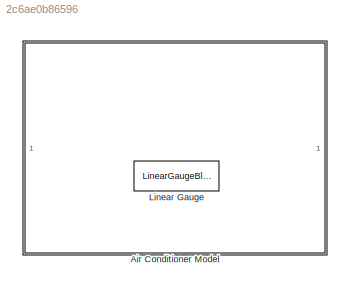
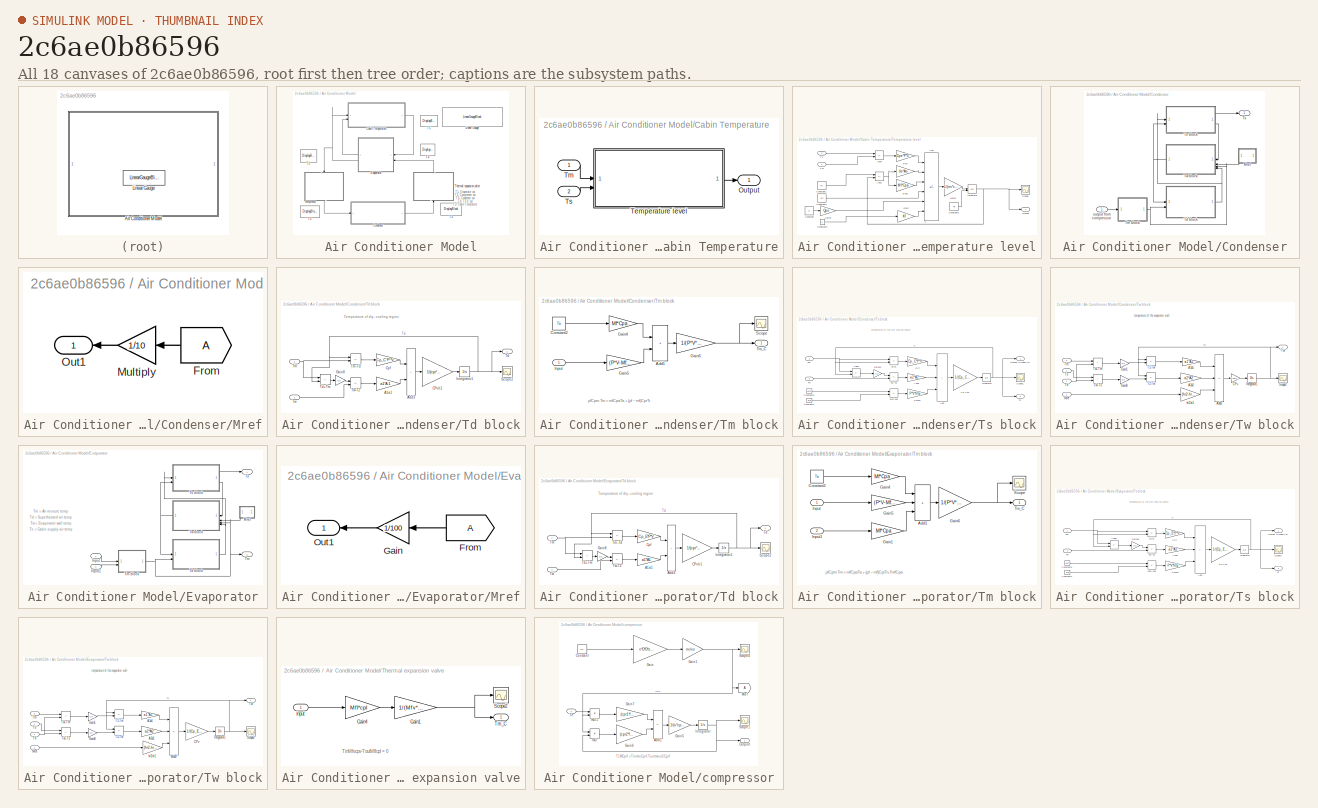
[diagram: thumbnail index - all 18 canvases of the model, root first then tree order]
MODEL slx_2c6ae0b86596
KIND model
CONFIG AbsTol = auto
CONFIG EnableMultiTasking = off
CONFIG FixedStep = auto
CONFIG MaxStep = auto
CONFIG MinStep = auto
CONFIG RelTol = 1e-3
CONFIG SampleTimeConstraint = Unconstrained
CONFIG SolverName = VariableStepAuto
CONFIG StartTime = 0.0
CONFIG StopTime = sim_time
BLOCK [SubSystem] Air Conditioner Model
BLOCK [SubSystem] Air Conditioner Model/Cabin Temperature
BLOCK [Outport] Air Conditioner Model/Cabin Temperature/Output
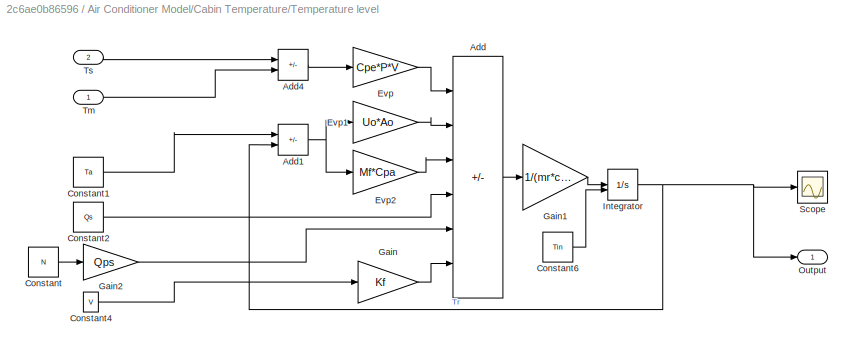
BLOCK [SubSystem] Air Conditioner Model/Cabin Temperature/Temperature level
BLOCK [Sum] Air Conditioner Model/Cabin Temperature/Temperature level/Add
  IconShape = rectangular
  Inputs = -+++++
BLOCK [Sum] Air Conditioner Model/Cabin Temperature/Temperature level/Add1
  IconShape = rectangular
  Inputs = +-
BLOCK [Sum] Air Conditioner Model/Cabin Temperature/Temperature level/Add4
  IconShape = rectangular
  Inputs = -+
BLOCK [Constant] Air Conditioner Model/Cabin Temperature/Temperature level/Constant
  Value = N
BLOCK [Constant] Air Conditioner Model/Cabin Temperature/Temperature level/Constant1
  Value = Ta
BLOCK [Constant] Air Conditioner Model/Cabin Temperature/Temperature level/Constant2
  Value = Qs
BLOCK [Constant] Air Conditioner Model/Cabin Temperature/Temperature level/Constant4
  Value = V
BLOCK [Constant] Air Conditioner Model/Cabin Temperature/Temperature level/Constant6
  Value = Tin
BLOCK [Gain] Air Conditioner Model/Cabin Temperature/Temperature level/Evp
  Gain = Cpe*P*V
BLOCK [Gain] Air Conditioner Model/Cabin Temperature/Temperature level/Evp1
  Gain = Uo*Ao
BLOCK [Gain] Air Conditioner Model/Cabin Temperature/Temperature level/Evp2
  Gain = Mf*Cpa
BLOCK [Gain] Air Conditioner Model/Cabin Temperature/Temperature level/Gain
  Gain = Kf
BLOCK [Gain] Air Conditioner Model/Cabin Temperature/Temperature level/Gain1
  Gain = 1/(mr*cpr)
BLOCK [Gain] Air Conditioner Model/Cabin Temperature/Temperature level/Gain2
  Gain = Qps
BLOCK [Integrator] Air Conditioner Model/Cabin Temperature/Temperature level/Integrator
  InitialConditionSource = external
BLOCK [Outport] Air Conditioner Model/Cabin Temperature/Temperature level/Output
BLOCK [Scope] Air Conditioner Model/Cabin Temperature/Temperature level/Scope
  Floating = off
  NumInputPorts = 1
  ScopeSpecificationString = Simulink.scopes.TimeScopeBlockCfg('CurrentConfiguration', extmgr.ConfigurationSet(extmgr.Configuration('Core','General UI',true),extmgr.Configuration('Core','Source UI',true),extmgr.Configuration('Sources','WiredSimulink',true,'DataLoggingVariableName','T','DataLogging',true,'DataLoggingSaveFormat','Array'),extmgr.Configuration('Visuals','Time Domain',true,'SerializedDisplays',{struct('MinYLimReal...<+1436ch>
BLOCK [Inport] Air Conditioner Model/Cabin Temperature/Temperature level/Tm
BLOCK [Inport] Air Conditioner Model/Cabin Temperature/Temperature level/Ts
  Port = 2
BLOCK [Inport] Air Conditioner Model/Cabin Temperature/Tm
BLOCK [Inport] Air Conditioner Model/Cabin Temperature/Ts
  Port = 2
BLOCK [SubSystem] Air Conditioner Model/Condenser
BLOCK [SubSystem] Air Conditioner Model/Condenser/Mref
  NameLocation = top
BLOCK [From] Air Conditioner Model/Condenser/Mref/From
  NameLocation = top
  TagVisibility = global
BLOCK [Gain] Air Conditioner Model/Condenser/Mref/Multiply
  Gain = 1/10
BLOCK [Outport] Air Conditioner Model/Condenser/Mref/Out1
BLOCK [SubSystem] Air Conditioner Model/Condenser/Td block
BLOCK [Gain] Air Conditioner Model/Condenser/Td block/A1a1
  Gain = a1*A1
BLOCK [Sum] Air Conditioner Model/Condenser/Td block/Add3
  IconShape = rectangular
BLOCK [Gain] Air Conditioner Model/Condenser/Td block/CPvh1
  Gain = 1/(cpr*P*Vh1)
BLOCK [Gain] Air Conditioner Model/Condenser/Td block/Cpf
  Gain = Cp_C*P*V
BLOCK [Gain] Air Conditioner Model/Condenser/Td block/Gain8
  Gain = 1/2
BLOCK [Integrator] Air Conditioner Model/Condenser/Td block/Integrator1
BLOCK [Scope] Air Conditioner Model/Condenser/Td block/Scope2
  Floating = off
  NumInputPorts = 1
  ScopeSpecificationString = Simulink.scopes.TimeScopeBlockCfg('CurrentConfiguration', extmgr.ConfigurationSet(extmgr.Configuration('Core','General UI',true),extmgr.Configuration('Core','Source UI',true),extmgr.Configuration('Sources','WiredSimulink',true,'DataLoggingVariableName','ScopeData2'),extmgr.Configuration('Visuals','Time Domain',true,'SerializedDisplays',{struct('MinYLimReal','-5.22527','MaxYLimReal','47.02744','YLa...<+1365ch>
BLOCK [Outport] Air Conditioner Model/Condenser/Td block/Td
BLOCK [Sum] Air Conditioner Model/Condenser/Td block/Td+Tm
  IconShape = rectangular
BLOCK [Inport] Air Conditioner Model/Condenser/Td block/Tm
  Port = 2
BLOCK [Sum] Air Conditioner Model/Condenser/Td block/Tm-Td
  IconShape = rectangular
  Inputs = -+
BLOCK [Inport] Air Conditioner Model/Condenser/Td block/Tw
BLOCK [Sum] Air Conditioner Model/Condenser/Td block/Tw-T2
  IconShape = rectangular
  Inputs = -+
BLOCK [SubSystem] Air Conditioner Model/Condenser/Tm block
BLOCK [Sum] Air Conditioner Model/Condenser/Tm block/Add1
  IconShape = rectangular
BLOCK [Constant] Air Conditioner Model/Condenser/Tm block/Constant2
  Value = Ta
BLOCK [Gain] Air Conditioner Model/Condenser/Tm block/Gain4
  Gain = Mf*Cpa
BLOCK [Gain] Air Conditioner Model/Condenser/Tm block/Gain5
  Gain = (P*V-Mf)*cpr
BLOCK [Gain] Air Conditioner Model/Condenser/Tm block/Gain6
  Gain = 1/(P*V*Cp_C)
BLOCK [Inport] Air Conditioner Model/Condenser/Tm block/Input
BLOCK [Scope] Air Conditioner Model/Condenser/Tm block/Scope
  Floating = off
  NumInputPorts = 1
  ScopeSpecificationString = Simulink.scopes.TimeScopeBlockCfg('CurrentConfiguration', extmgr.ConfigurationSet(extmgr.Configuration('Core','General UI',true),extmgr.Configuration('Core','Source UI',true),extmgr.Configuration('Sources','WiredSimulink',true,'DataLoggingVariableName','ScopeData1'),extmgr.Configuration('Visuals','Time Domain',true,'SerializedDisplays',{struct('MinYLimReal','22.75143','MaxYLimReal','58.37195','YLa...<+1370ch>
BLOCK [Outport] Air Conditioner Model/Condenser/Tm block/Tm_C
BLOCK [Outport] Air Conditioner Model/Condenser/Ts
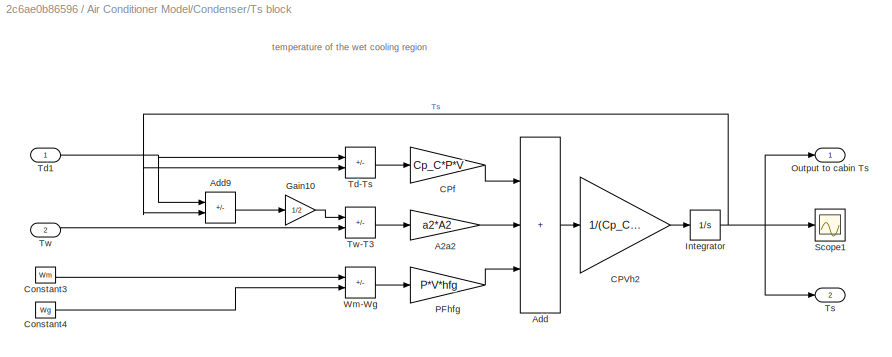
BLOCK [SubSystem] Air Conditioner Model/Condenser/Ts block
BLOCK [Gain] Air Conditioner Model/Condenser/Ts block/A2a2
  Gain = a2*A2
BLOCK [Sum] Air Conditioner Model/Condenser/Ts block/Add
  IconShape = rectangular
  Inputs = +++
BLOCK [Sum] Air Conditioner Model/Condenser/Ts block/Add9
  IconShape = rectangular
  Inputs = +-
BLOCK [Gain] Air Conditioner Model/Condenser/Ts block/CPVh2
  Gain = 1/(Cp_C*P*Vh2)
BLOCK [Gain] Air Conditioner Model/Condenser/Ts block/CPf
  Gain = Cp_C*P*V
BLOCK [Constant] Air Conditioner Model/Condenser/Ts block/Constant3
  Value = Wm
BLOCK [Constant] Air Conditioner Model/Condenser/Ts block/Constant4
  Value = Wg
BLOCK [Gain] Air Conditioner Model/Condenser/Ts block/Gain10
  Gain = 1/2
BLOCK [Integrator] Air Conditioner Model/Condenser/Ts block/Integrator
  InitialCondition = 27
BLOCK [Outport] Air Conditioner Model/Condenser/Ts block/Output to cabin Ts
BLOCK [Gain] Air Conditioner Model/Condenser/Ts block/PFhfg
  Gain = P*V*hfg
BLOCK [Scope] Air Conditioner Model/Condenser/Ts block/Scope1
  Floating = off
  NumInputPorts = 1
  ScopeSpecificationString = Simulink.scopes.TimeScopeBlockCfg('CurrentConfiguration', extmgr.ConfigurationSet(extmgr.Configuration('Core','General UI',true),extmgr.Configuration('Core','Source UI',true),extmgr.Configuration('Sources','WiredSimulink',true,'DataLoggingVariableName','Con','DataLogging',true,'DataLoggingSaveFormat','Array'),extmgr.Configuration('Visuals','Time Domain',true,'SerializedDisplays',{struct('MinYLimRe...<+1440ch>
BLOCK [Sum] Air Conditioner Model/Condenser/Ts block/Td-Ts
  IconShape = rectangular
  Inputs = +-
BLOCK [Inport] Air Conditioner Model/Condenser/Ts block/Td1
BLOCK [Outport] Air Conditioner Model/Condenser/Ts block/Ts
  Port = 2
BLOCK [Inport] Air Conditioner Model/Condenser/Ts block/Tw
  Port = 2
BLOCK [Sum] Air Conditioner Model/Condenser/Ts block/Tw-T3
  IconShape = rectangular
  Inputs = -+
BLOCK [Sum] Air Conditioner Model/Condenser/Ts block/Wm-Wg
  IconShape = rectangular
  Inputs = +-
BLOCK [SubSystem] Air Conditioner Model/Condenser/Tw block
BLOCK [Gain] Air Conditioner Model/Condenser/Tw block/A1a1
  Gain = a1*A1
BLOCK [Gain] Air Conditioner Model/Condenser/Tw block/A2a2
  Gain = a2*A2
BLOCK [Sum] Air Conditioner Model/Condenser/Tw block/Add3
  IconShape = rectangular
  Inputs = ++-
BLOCK [Gain] Air Conditioner Model/Condenser/Tw block/CPv
  Gain = 1/(cpr*P*v)
BLOCK [Gain] Air Conditioner Model/Condenser/Tw block/Gain1
  Gain = 1/2
BLOCK [Gain] Air Conditioner Model/Condenser/Tw block/Gain8
  Gain = 1/2
BLOCK [Integrator] Air Conditioner Model/Condenser/Tw block/Integrator1
  InitialCondition = 28
BLOCK [Inport] Air Conditioner Model/Condenser/Tw block/Mref
  Port = 2
BLOCK [Scope] Air Conditioner Model/Condenser/Tw block/Scope2
  Floating = off
  NumInputPorts = 1
  ScopeSpecificationString = Simulink.scopes.TimeScopeBlockCfg('CurrentConfiguration', extmgr.ConfigurationSet(extmgr.Configuration('Core','General UI',true),extmgr.Configuration('Core','Source UI',true),extmgr.Configuration('Sources','WiredSimulink',true,'DataLoggingVariableName','ScopeData2'),extmgr.Configuration('Visuals','Time Domain',true,'SerializedDisplays',{struct('MinYLimReal','23.56767','MaxYLimReal','58.62035','YLa...<+1397ch>
BLOCK [Sum] Air Conditioner Model/Condenser/Tw block/T1-Tw
  IconShape = rectangular
  Inputs = -+
BLOCK [Sum] Air Conditioner Model/Condenser/Tw block/T2-Tw
  IconShape = rectangular
  Inputs = -+
BLOCK [Inport] Air Conditioner Model/Condenser/Tw block/Td
  Port = 4
BLOCK [Sum] Air Conditioner Model/Condenser/Tw block/Td+Tm
  IconShape = rectangular
BLOCK [Sum] Air Conditioner Model/Condenser/Tw block/Td+Ts
  IconShape = rectangular
BLOCK [Inport] Air Conditioner Model/Condenser/Tw block/Tm
  Port = 3
BLOCK [Inport] Air Conditioner Model/Condenser/Tw block/Ts
BLOCK [Outport] Air Conditioner Model/Condenser/Tw block/Tw
BLOCK [Gain] Air Conditioner Model/Condenser/Tw block/hr2-hr1
  Gain = (hr2-hr1)
BLOCK [Inport] Air Conditioner Model/Condenser/output from compressor
BLOCK [SubSystem] Air Conditioner Model/Evaporator
BLOCK [Inport] Air Conditioner Model/Evaporator/Input
BLOCK [Inport] Air Conditioner Model/Evaporator/Input1
  Port = 2
BLOCK [SubSystem] Air Conditioner Model/Evaporator/Mref
  NameLocation = top
BLOCK [From] Air Conditioner Model/Evaporator/Mref/From
  NameLocation = top
  TagVisibility = global
BLOCK [Gain] Air Conditioner Model/Evaporator/Mref/Gain
  Gain = 1/100
  NameLocation = top
BLOCK [Outport] Air Conditioner Model/Evaporator/Mref/Out1
BLOCK [SubSystem] Air Conditioner Model/Evaporator/Td block
BLOCK [Gain] Air Conditioner Model/Evaporator/Td block/A1a1
  Gain = a1*A1
BLOCK [Sum] Air Conditioner Model/Evaporator/Td block/Add3
  IconShape = rectangular
BLOCK [Gain] Air Conditioner Model/Evaporator/Td block/CPvh1
  Gain = 1/(cpr*P*Vh1)
BLOCK [Gain] Air Conditioner Model/Evaporator/Td block/Cpf
  Gain = Cp_E*P*V
BLOCK [Gain] Air Conditioner Model/Evaporator/Td block/Gain8
  Gain = 1/2
BLOCK [Integrator] Air Conditioner Model/Evaporator/Td block/Integrator1
  InitialCondition = 27
BLOCK [Scope] Air Conditioner Model/Evaporator/Td block/Scope2
  Floating = off
  NumInputPorts = 1
  ScopeSpecificationString = Simulink.scopes.TimeScopeBlockCfg('CurrentConfiguration', extmgr.ConfigurationSet(extmgr.Configuration('Core','General UI',true),extmgr.Configuration('Core','Source UI',true),extmgr.Configuration('Sources','WiredSimulink',true,'DataLoggingVariableName','ScopeData2'),extmgr.Configuration('Visuals','Time Domain',true,'SerializedDisplays',{struct('MinYLimReal','13.71145','MaxYLimReal','29.29011','YLa...<+1367ch>
BLOCK [Outport] Air Conditioner Model/Evaporator/Td block/Td
BLOCK [Sum] Air Conditioner Model/Evaporator/Td block/Td+Tm
  IconShape = rectangular
BLOCK [Inport] Air Conditioner Model/Evaporator/Td block/Tm
  Port = 2
BLOCK [Sum] Air Conditioner Model/Evaporator/Td block/Tm-Td
  IconShape = rectangular
  Inputs = -+
BLOCK [Inport] Air Conditioner Model/Evaporator/Td block/Tw
BLOCK [Sum] Air Conditioner Model/Evaporator/Td block/Tw-T2
  IconShape = rectangular
  Inputs = -+
BLOCK [Outport] Air Conditioner Model/Evaporator/Tm
  Port = 2
BLOCK [SubSystem] Air Conditioner Model/Evaporator/Tm block
BLOCK [Sum] Air Conditioner Model/Evaporator/Tm block/Add1
  IconShape = rectangular
  Inputs = +++
BLOCK [Constant] Air Conditioner Model/Evaporator/Tm block/Constant2
  Value = Ta
BLOCK [Gain] Air Conditioner Model/Evaporator/Tm block/Gain1
  Gain = Mf*Cpa
BLOCK [Gain] Air Conditioner Model/Evaporator/Tm block/Gain4
  Gain = Mf*Cpa
BLOCK [Gain] Air Conditioner Model/Evaporator/Tm block/Gain5
  Gain = (P*V-Mf)*cpr
BLOCK [Gain] Air Conditioner Model/Evaporator/Tm block/Gain6
  Gain = 1/(P*V*Cp_E)
BLOCK [Inport] Air Conditioner Model/Evaporator/Tm block/Input
BLOCK [Inport] Air Conditioner Model/Evaporator/Tm block/Input1
  Port = 2
BLOCK [Scope] Air Conditioner Model/Evaporator/Tm block/Scope
  Floating = off
  NumInputPorts = 1
  ScopeSpecificationString = Simulink.scopes.TimeScopeBlockCfg('CurrentConfiguration', extmgr.ConfigurationSet(extmgr.Configuration('Core','General UI',true),extmgr.Configuration('Core','Source UI',true),extmgr.Configuration('Sources','WiredSimulink',true,'DataLoggingVariableName','ScopeData1'),extmgr.Configuration('Visuals','Time Domain',true,'SerializedDisplays',{struct('MinYLimReal','19.71422','MaxYLimReal','25.13528','YLa...<+1370ch>
BLOCK [Outport] Air Conditioner Model/Evaporator/Tm block/Tm_C
BLOCK [Outport] Air Conditioner Model/Evaporator/Ts
BLOCK [SubSystem] Air Conditioner Model/Evaporator/Ts block
BLOCK [Gain] Air Conditioner Model/Evaporator/Ts block/A2a2
  Gain = a2*A2
BLOCK [Sum] Air Conditioner Model/Evaporator/Ts block/Add
  IconShape = rectangular
  Inputs = +++
BLOCK [Sum] Air Conditioner Model/Evaporator/Ts block/Add9
  IconShape = rectangular
  Inputs = +-
BLOCK [Gain] Air Conditioner Model/Evaporator/Ts block/CPVh2
  Gain = 1/(Cp_E*P*Vh2)
BLOCK [Gain] Air Conditioner Model/Evaporator/Ts block/CPf
  Gain = Cp_E*P*V
BLOCK [Constant] Air Conditioner Model/Evaporator/Ts block/Constant3
  Value = Wm
BLOCK [Constant] Air Conditioner Model/Evaporator/Ts block/Constant4
  Value = Wg
BLOCK [Gain] Air Conditioner Model/Evaporator/Ts block/Gain10
  Gain = 1/2
BLOCK [Integrator] Air Conditioner Model/Evaporator/Ts block/Integrator
  InitialCondition = 27
BLOCK [Outport] Air Conditioner Model/Evaporator/Ts block/Output to cabin Ts
BLOCK [Gain] Air Conditioner Model/Evaporator/Ts block/PFhfg
  Gain = P*V*hfg
BLOCK [Scope] Air Conditioner Model/Evaporator/Ts block/Scope1
  Floating = off
  NumInputPorts = 1
  ScopeSpecificationString = Simulink.scopes.TimeScopeBlockCfg('CurrentConfiguration', extmgr.ConfigurationSet(extmgr.Configuration('Core','General UI',true),extmgr.Configuration('Core','Source UI',true),extmgr.Configuration('Sources','WiredSimulink',true,'DataLoggingVariableName','Evp','DataLogging',true,'DataLoggingSaveFormat','Array'),extmgr.Configuration('Visuals','Time Domain',true,'SerializedDisplays',{struct('MinYLimRe...<+1438ch>
BLOCK [Sum] Air Conditioner Model/Evaporator/Ts block/Td-Ts
  IconShape = rectangular
  Inputs = +-
BLOCK [Inport] Air Conditioner Model/Evaporator/Ts block/Td1
BLOCK [Outport] Air Conditioner Model/Evaporator/Ts block/Ts
  Port = 2
BLOCK [Inport] Air Conditioner Model/Evaporator/Ts block/Tw
  Port = 2
BLOCK [Sum] Air Conditioner Model/Evaporator/Ts block/Tw-T3
  IconShape = rectangular
  Inputs = -+
BLOCK [Sum] Air Conditioner Model/Evaporator/Ts block/Wm-Wg
  IconShape = rectangular
  Inputs = +-
BLOCK [SubSystem] Air Conditioner Model/Evaporator/Tw block
BLOCK [Gain] Air Conditioner Model/Evaporator/Tw block/A1a1
  Gain = a1*A1
BLOCK [Gain] Air Conditioner Model/Evaporator/Tw block/A2a2
  Gain = a2*A2
BLOCK [Sum] Air Conditioner Model/Evaporator/Tw block/Add3
  IconShape = rectangular
  Inputs = ++-
BLOCK [Gain] Air Conditioner Model/Evaporator/Tw block/CPv
  Gain = 1/(Cp_E*P*v)
BLOCK [Gain] Air Conditioner Model/Evaporator/Tw block/Gain1
  Gain = 1/2
BLOCK [Gain] Air Conditioner Model/Evaporator/Tw block/Gain8
  Gain = 1/2
BLOCK [Integrator] Air Conditioner Model/Evaporator/Tw block/Integrator1
  InitialCondition = 28
BLOCK [Inport] Air Conditioner Model/Evaporator/Tw block/Mref
  Port = 2
BLOCK [Scope] Air Conditioner Model/Evaporator/Tw block/Scope2
  Floating = off
  NumInputPorts = 1
  ScopeSpecificationString = Simulink.scopes.TimeScopeBlockCfg('CurrentConfiguration', extmgr.ConfigurationSet(extmgr.Configuration('Core','General UI',true),extmgr.Configuration('Core','Source UI',true),extmgr.Configuration('Sources','WiredSimulink',true,'DataLoggingVariableName','ScopeData2'),extmgr.Configuration('Visuals','Time Domain',true,'SerializedDisplays',{struct('MinYLimReal','14.48413','MaxYLimReal','29.50176','YLa...<+1367ch>
BLOCK [Sum] Air Conditioner Model/Evaporator/Tw block/T1-Tw
  IconShape = rectangular
  Inputs = -+
BLOCK [Sum] Air Conditioner Model/Evaporator/Tw block/T2-Tw
  IconShape = rectangular
  Inputs = -+
BLOCK [Inport] Air Conditioner Model/Evaporator/Tw block/Td
  Port = 4
BLOCK [Sum] Air Conditioner Model/Evaporator/Tw block/Td+Tm
  IconShape = rectangular
BLOCK [Sum] Air Conditioner Model/Evaporator/Tw block/Td+Ts
  IconShape = rectangular
BLOCK [Inport] Air Conditioner Model/Evaporator/Tw block/Tm
  Port = 3
BLOCK [Inport] Air Conditioner Model/Evaporator/Tw block/Ts
BLOCK [Outport] Air Conditioner Model/Evaporator/Tw block/Tw
BLOCK [Gain] Air Conditioner Model/Evaporator/Tw block/hr2-hr1
  Gain = (hr2-hr1)
BLOCK [LinearGaugeBlock] Air Conditioner Model/Linear Gauge
  ScaleMax = 50
  TickInterval = 5
BLOCK [DisplayBlock] Air Conditioner Model/T1
  LabelPosition = Hide
  Transparency = 1
BLOCK [DisplayBlock] Air Conditioner Model/T2
  LabelPosition = Hide
  Transparency = 1
BLOCK [DisplayBlock] Air Conditioner Model/T3
  LabelPosition = Hide
  Transparency = 1
BLOCK [DisplayBlock] Air Conditioner Model/T4
  LabelPosition = Hide
  Transparency = 1
BLOCK [DisplayBlock] Air Conditioner Model/T5
  LabelPosition = Hide
  Transparency = 1
BLOCK [SubSystem] Air Conditioner Model/Thermal expansion valve
  NameLocation = right
BLOCK [Gain] Air Conditioner Model/Thermal expansion valve/Gain1
  Gain = 1/(Mfv*cpv)
BLOCK [Gain] Air Conditioner Model/Thermal expansion valve/Gain4
  Gain = Mfl*cpl
BLOCK [Inport] Air Conditioner Model/Thermal expansion valve/Input
BLOCK [Scope] Air Conditioner Model/Thermal expansion valve/Scope2
  Floating = off
  NumInputPorts = 1
  ScopeSpecificationString = Simulink.scopes.TimeScopeBlockCfg('CurrentConfiguration', extmgr.ConfigurationSet(extmgr.Configuration('Core','General UI',true),extmgr.Configuration('Core','Source UI',true),extmgr.Configuration('Sources','WiredSimulink',true,'DataLoggingVariableName','Tev','DataLogging',true,'DataLoggingSaveFormat','Array'),extmgr.Configuration('Visuals','Time Domain',true,'SerializedDisplays',{struct('MinYLimRe...<+1552ch>
BLOCK [Outport] Air Conditioner Model/Thermal expansion valve/Tm_C
BLOCK [SubSystem] Air Conditioner Model/compressor
  NameLocation = left
BLOCK [Sum] Air Conditioner Model/compressor/Add1
  IconShape = rectangular
  Inputs = +-
BLOCK [Constant] Air Conditioner Model/compressor/Constant
  SampleTime = -1
  Value = Nc
  VectorParams1D = off
BLOCK [Gain] Air Conditioner Model/compressor/Gain
  Gain = n*D*D*sp1*(pi/4)
BLOCK [Gain] Air Conditioner Model/compressor/Gain1
  Gain = nv/vs
BLOCK [Gain] Air Conditioner Model/compressor/Gain5
  Gain = 1/(v*cpr*V)
BLOCK [Gain] Air Conditioner Model/compressor/Gain6
  Gain = (cpr2*f2)/1000
BLOCK [Gain] Air Conditioner Model/compressor/Gain7
  Gain = (cpr1*f1)/1000
BLOCK [Integrator] Air Conditioner Model/compressor/Integrator
  InitialCondition = 10
BLOCK [Goto] Air Conditioner Model/compressor/Mref
  TagVisibility = global
BLOCK [Outport] Air Conditioner Model/compressor/Outport
BLOCK [Scope] Air Conditioner Model/compressor/Scope1
  Floating = off
  NumInputPorts = 1
  ScopeSpecificationString = Simulink.scopes.TimeScopeBlockCfg('CurrentConfiguration', extmgr.ConfigurationSet(extmgr.Configuration('Core','General UI',true),extmgr.Configuration('Core','Source UI',true),extmgr.Configuration('Sources','WiredSimulink',true,'DataLoggingVariableName','Comp','DataLogging',true,'DataLoggingSaveFormat','Array'),extmgr.Configuration('Visuals','Time Domain',true,'SerializedDisplays',{struct('MinYLimR...<+1445ch>
BLOCK [Scope] Air Conditioner Model/compressor/Scope4
  Floating = off
  NumInputPorts = 1
  ScopeSpecificationString = Simulink.scopes.TimeScopeBlockCfg('CurrentConfiguration', extmgr.ConfigurationSet(extmgr.Configuration('Core','General UI',true),extmgr.Configuration('Core','Source UI',true),extmgr.Configuration('Sources','WiredSimulink',true,'DataLoggingVariableName','Mref','DataLogging',true),extmgr.Configuration('Visuals','Time Domain',true,'SerializedDisplays',{struct('MinYLimReal','37.05127','MaxYLimReal','2...<+1417ch>
BLOCK [Inport] Air Conditioner Model/compressor/Te
BLOCK [Product] Air Conditioner Model/compressor/mul
  Inputs = **
BLOCK [Product] Air Conditioner Model/compressor/mul1
  Inputs = **
BLOCK [LinearGaugeBlock] Linear Gauge
  ScaleMax = 50
  TickInterval = 5
ANNOTATION Air Conditioner Model: T1- Evaporator out T2- Compressor out T3- Condenser out T4- TEV out T5- Cabin Temprature
ANNOTATION Air Conditioner Model/Condenser/Td block: Temperature of dry- cooling region
ANNOTATION Air Conditioner Model/Condenser/Tm block: ρfCpm Tm = mfCpaTa + (ρf − mf)CprTr
ANNOTATION Air Conditioner Model/Condenser/Ts block: temperature of the wet cooling region
ANNOTATION Air Conditioner Model/Condenser/Tw block: temperature of the evaporator wall
ANNOTATION Air Conditioner Model/Evaporator: Td = Superheated air temp
ANNOTATION Air Conditioner Model/Evaporator: Tm = Air mixture temp
ANNOTATION Air Conditioner Model/Evaporator: Ts = Cabin supply air temp
ANNOTATION Air Conditioner Model/Evaporator: Tw = Evaporator wall temp
ANNOTATION Air Conditioner Model/Evaporator/Td block: Temperature of dry- cooling region
ANNOTATION Air Conditioner Model/Evaporator/Tm block: ρfCpm Tm = mfCpaTa + (ρf − mf)CprTr+TmfCpa
ANNOTATION Air Conditioner Model/Evaporator/Ts block: temperature of the wet cooling region
ANNOTATION Air Conditioner Model/Evaporator/Tw block: temperature of the evaporator wall
ANNOTATION Air Conditioner Model/Thermal expansion valve: TinMfvcpv-ToutMflcpl = 0
ANNOTATION Air Conditioner Model/compressor: T1MCprf =TinminCprf-Toutmout2Cprf
NET Air Conditioner Model/Cabin Temperature/Temperature level/Add1:1 -> Air Conditioner Model/Cabin Temperature/Temperature level/Evp1:1, Air Conditioner Model/Cabin Temperature/Temperature level/Evp2:1
LINE Air Conditioner Model/Cabin Temperature/Temperature level/Add4:1 -> Air Conditioner Model/Cabin Temperature/Temperature level/Evp:1
LINE Air Conditioner Model/Cabin Temperature/Temperature level/Add:1 -> Air Conditioner Model/Cabin Temperature/Temperature level/Gain1:1
LINE Air Conditioner Model/Cabin Temperature/Temperature level/Constant1:1 -> Air Conditioner Model/Cabin Temperature/Temperature level/Add1:1
LINE Air Conditioner Model/Cabin Temperature/Temperature level/Constant2:1 -> Air Conditioner Model/Cabin Temperature/Temperature level/Add:4
LINE Air Conditioner Model/Cabin Temperature/Temperature level/Constant4:1 -> Air Conditioner Model/Cabin Temperature/Temperature level/Gain:1
LINE Air Conditioner Model/Cabin Temperature/Temperature level/Constant6:1 -> Air Conditioner Model/Cabin Temperature/Temperature level/Integrator:2
LINE Air Conditioner Model/Cabin Temperature/Temperature level/Constant:1 -> Air Conditioner Model/Cabin Temperature/Temperature level/Gain2:1
LINE Air Conditioner Model/Cabin Temperature/Temperature level/Evp1:1 -> Air Conditioner Model/Cabin Temperature/Temperature level/Add:2
LINE Air Conditioner Model/Cabin Temperature/Temperature level/Evp2:1 -> Air Conditioner Model/Cabin Temperature/Temperature level/Add:3
LINE Air Conditioner Model/Cabin Temperature/Temperature level/Evp:1 -> Air Conditioner Model/Cabin Temperature/Temperature level/Add:1
LINE Air Conditioner Model/Cabin Temperature/Temperature level/Gain1:1 -> Air Conditioner Model/Cabin Temperature/Temperature level/Integrator:1
LINE Air Conditioner Model/Cabin Temperature/Temperature level/Gain2:1 -> Air Conditioner Model/Cabin Temperature/Temperature level/Add:5
LINE Air Conditioner Model/Cabin Temperature/Temperature level/Gain:1 -> Air Conditioner Model/Cabin Temperature/Temperature level/Add:6
NET Air Conditioner Model/Cabin Temperature/Temperature level/Integrator:1 -> Air Conditioner Model/Cabin Temperature/Temperature level/Add1:2, Air Conditioner Model/Cabin Temperature/Temperature level/Output:1, Air Conditioner Model/Cabin Temperature/Temperature level/Scope:1
LINE Air Conditioner Model/Cabin Temperature/Temperature level/Tm:1 -> Air Conditioner Model/Cabin Temperature/Temperature level/Add4:2
LINE Air Conditioner Model/Cabin Temperature/Temperature level/Ts:1 -> Air Conditioner Model/Cabin Temperature/Temperature level/Add4:1
LINE Air Conditioner Model/Cabin Temperature/Temperature level:1 -> Air Conditioner Model/Cabin Temperature/Output:1
LINE Air Conditioner Model/Cabin Temperature/Tm:1 -> Air Conditioner Model/Cabin Temperature/Temperature level:1
LINE Air Conditioner Model/Cabin Temperature/Ts:1 -> Air Conditioner Model/Cabin Temperature/Temperature level:2
LINE Air Conditioner Model/Cabin Temperature:1 -> Air Conditioner Model/Evaporator:1
LINE Air Conditioner Model/Condenser/Mref/From:1 -> Air Conditioner Model/Condenser/Mref/Multiply:1
LINE Air Conditioner Model/Condenser/Mref/Multiply:1 -> Air Conditioner Model/Condenser/Mref/Out1:1
LINE Air Conditioner Model/Condenser/Mref:1 -> Air Conditioner Model/Condenser/Tw block:2
LINE Air Conditioner Model/Condenser/Td block/A1a1:1 -> Air Conditioner Model/Condenser/Td block/Add3:2
LINE Air Conditioner Model/Condenser/Td block/Add3:1 -> Air Conditioner Model/Condenser/Td block/CPvh1:1
LINE Air Conditioner Model/Condenser/Td block/CPvh1:1 -> Air Conditioner Model/Condenser/Td block/Integrator1:1
LINE Air Conditioner Model/Condenser/Td block/Cpf:1 -> Air Conditioner Model/Condenser/Td block/Add3:1
LINE Air Conditioner Model/Condenser/Td block/Gain8:1 -> Air Conditioner Model/Condenser/Td block/Tw-T2:1
NET Air Conditioner Model/Condenser/Td block/Integrator1:1 -> Air Conditioner Model/Condenser/Td block/Scope2:1, Air Conditioner Model/Condenser/Td block/Td+Tm:2, Air Conditioner Model/Condenser/Td block/Td:1, Air Conditioner Model/Condenser/Td block/Tm-Td:1
LINE Air Conditioner Model/Condenser/Td block/Td+Tm:1 -> Air Conditioner Model/Condenser/Td block/Gain8:1
LINE Air Conditioner Model/Condenser/Td block/Tm-Td:1 -> Air Conditioner Model/Condenser/Td block/Cpf:1
NET Air Conditioner Model/Condenser/Td block/Tm:1 -> Air Conditioner Model/Condenser/Td block/Td+Tm:1, Air Conditioner Model/Condenser/Td block/Tm-Td:2
LINE Air Conditioner Model/Condenser/Td block/Tw-T2:1 -> Air Conditioner Model/Condenser/Td block/A1a1:1
LINE Air Conditioner Model/Condenser/Td block/Tw:1 -> Air Conditioner Model/Condenser/Td block/Tw-T2:2
NET Air Conditioner Model/Condenser/Td block:1 -> Air Conditioner Model/Condenser/Ts block:1, Air Conditioner Model/Condenser/Tw block:4
LINE Air Conditioner Model/Condenser/Tm block/Add1:1 -> Air Conditioner Model/Condenser/Tm block/Gain6:1
LINE Air Conditioner Model/Condenser/Tm block/Constant2:1 -> Air Conditioner Model/Condenser/Tm block/Gain4:1
LINE Air Conditioner Model/Condenser/Tm block/Gain4:1 -> Air Conditioner Model/Condenser/Tm block/Add1:1
LINE Air Conditioner Model/Condenser/Tm block/Gain5:1 -> Air Conditioner Model/Condenser/Tm block/Add1:2
NET Air Conditioner Model/Condenser/Tm block/Gain6:1 -> Air Conditioner Model/Condenser/Tm block/Scope:1, Air Conditioner Model/Condenser/Tm block/Tm_C:1
LINE Air Conditioner Model/Condenser/Tm block/Input:1 -> Air Conditioner Model/Condenser/Tm block/Gain5:1
NET Air Conditioner Model/Condenser/Tm block:1 -> Air Conditioner Model/Condenser/Td block:2, Air Conditioner Model/Condenser/Tw block:3
LINE Air Conditioner Model/Condenser/Ts block/A2a2:1 -> Air Conditioner Model/Condenser/Ts block/Add:2
LINE Air Conditioner Model/Condenser/Ts block/Add9:1 -> Air Conditioner Model/Condenser/Ts block/Gain10:1
LINE Air Conditioner Model/Condenser/Ts block/Add:1 -> Air Conditioner Model/Condenser/Ts block/CPVh2:1
LINE Air Conditioner Model/Condenser/Ts block/CPVh2:1 -> Air Conditioner Model/Condenser/Ts block/Integrator:1
LINE Air Conditioner Model/Condenser/Ts block/CPf:1 -> Air Conditioner Model/Condenser/Ts block/Add:1
LINE Air Conditioner Model/Condenser/Ts block/Constant3:1 -> Air Conditioner Model/Condenser/Ts block/Wm-Wg:1
LINE Air Conditioner Model/Condenser/Ts block/Constant4:1 -> Air Conditioner Model/Condenser/Ts block/Wm-Wg:2
LINE Air Conditioner Model/Condenser/Ts block/Gain10:1 -> Air Conditioner Model/Condenser/Ts block/Tw-T3:1
NET Air Conditioner Model/Condenser/Ts block/Integrator:1 -> Air Conditioner Model/Condenser/Ts block/Add9:2, Air Conditioner Model/Condenser/Ts block/Output to cabin Ts:1, Air Conditioner Model/Condenser/Ts block/Scope1:1, Air Conditioner Model/Condenser/Ts block/Td-Ts:2, Air Conditioner Model/Condenser/Ts block/Ts:1
LINE Air Conditioner Model/Condenser/Ts block/PFhfg:1 -> Air Conditioner Model/Condenser/Ts block/Add:3
LINE Air Conditioner Model/Condenser/Ts block/Td-Ts:1 -> Air Conditioner Model/Condenser/Ts block/CPf:1
NET Air Conditioner Model/Condenser/Ts block/Td1:1 -> Air Conditioner Model/Condenser/Ts block/Add9:1, Air Conditioner Model/Condenser/Ts block/Td-Ts:1
LINE Air Conditioner Model/Condenser/Ts block/Tw-T3:1 -> Air Conditioner Model/Condenser/Ts block/A2a2:1
LINE Air Conditioner Model/Condenser/Ts block/Tw:1 -> Air Conditioner Model/Condenser/Ts block/Tw-T3:2
LINE Air Conditioner Model/Condenser/Ts block/Wm-Wg:1 -> Air Conditioner Model/Condenser/Ts block/PFhfg:1
LINE Air Conditioner Model/Condenser/Ts block:1 -> Air Conditioner Model/Condenser/Ts:1
LINE Air Conditioner Model/Condenser/Ts block:2 -> Air Conditioner Model/Condenser/Tw block:1
LINE Air Conditioner Model/Condenser/Tw block/A1a1:1 -> Air Conditioner Model/Condenser/Tw block/Add3:1
LINE Air Conditioner Model/Condenser/Tw block/A2a2:1 -> Air Conditioner Model/Condenser/Tw block/Add3:2
LINE Air Conditioner Model/Condenser/Tw block/Add3:1 -> Air Conditioner Model/Condenser/Tw block/CPv:1
LINE Air Conditioner Model/Condenser/Tw block/CPv:1 -> Air Conditioner Model/Condenser/Tw block/Integrator1:1
LINE Air Conditioner Model/Condenser/Tw block/Gain1:1 -> Air Conditioner Model/Condenser/Tw block/T1-Tw:2
LINE Air Conditioner Model/Condenser/Tw block/Gain8:1 -> Air Conditioner Model/Condenser/Tw block/T2-Tw:2
NET Air Conditioner Model/Condenser/Tw block/Integrator1:1 -> Air Conditioner Model/Condenser/Tw block/Scope2:1, Air Conditioner Model/Condenser/Tw block/T1-Tw:1, Air Conditioner Model/Condenser/Tw block/T2-Tw:1, Air Conditioner Model/Condenser/Tw block/Tw:1
LINE Air Conditioner Model/Condenser/Tw block/Mref:1 -> Air Conditioner Model/Condenser/Tw block/hr2-hr1:1
LINE Air Conditioner Model/Condenser/Tw block/T1-Tw:1 -> Air Conditioner Model/Condenser/Tw block/A1a1:1
LINE Air Conditioner Model/Condenser/Tw block/T2-Tw:1 -> Air Conditioner Model/Condenser/Tw block/A2a2:1
LINE Air Conditioner Model/Condenser/Tw block/Td+Tm:1 -> Air Conditioner Model/Condenser/Tw block/Gain1:1
LINE Air Conditioner Model/Condenser/Tw block/Td+Ts:1 -> Air Conditioner Model/Condenser/Tw block/Gain8:1
NET Air Conditioner Model/Condenser/Tw block/Td:1 -> Air Conditioner Model/Condenser/Tw block/Td+Tm:2, Air Conditioner Model/Condenser/Tw block/Td+Ts:2
LINE Air Conditioner Model/Condenser/Tw block/Tm:1 -> Air Conditioner Model/Condenser/Tw block/Td+Tm:1
LINE Air Conditioner Model/Condenser/Tw block/Ts:1 -> Air Conditioner Model/Condenser/Tw block/Td+Ts:1
LINE Air Conditioner Model/Condenser/Tw block/hr2-hr1:1 -> Air Conditioner Model/Condenser/Tw block/Add3:3
NET Air Conditioner Model/Condenser/Tw block:1 -> Air Conditioner Model/Condenser/Td block:1, Air Conditioner Model/Condenser/Ts block:2
LINE Air Conditioner Model/Condenser/output from compressor:1 -> Air Conditioner Model/Condenser/Tm block:1
LINE Air Conditioner Model/Condenser:1 -> Air Conditioner Model/Thermal expansion valve:1
LINE Air Conditioner Model/Evaporator/Input1:1 -> Air Conditioner Model/Evaporator/Tm block:2
LINE Air Conditioner Model/Evaporator/Input:1 -> Air Conditioner Model/Evaporator/Tm block:1
LINE Air Conditioner Model/Evaporator/Mref/From:1 -> Air Conditioner Model/Evaporator/Mref/Gain:1
LINE Air Conditioner Model/Evaporator/Mref/Gain:1 -> Air Conditioner Model/Evaporator/Mref/Out1:1
LINE Air Conditioner Model/Evaporator/Mref:1 -> Air Conditioner Model/Evaporator/Tw block:2
LINE Air Conditioner Model/Evaporator/Td block/A1a1:1 -> Air Conditioner Model/Evaporator/Td block/Add3:2
LINE Air Conditioner Model/Evaporator/Td block/Add3:1 -> Air Conditioner Model/Evaporator/Td block/CPvh1:1
LINE Air Conditioner Model/Evaporator/Td block/CPvh1:1 -> Air Conditioner Model/Evaporator/Td block/Integrator1:1
LINE Air Conditioner Model/Evaporator/Td block/Cpf:1 -> Air Conditioner Model/Evaporator/Td block/Add3:1
LINE Air Conditioner Model/Evaporator/Td block/Gain8:1 -> Air Conditioner Model/Evaporator/Td block/Tw-T2:1
NET Air Conditioner Model/Evaporator/Td block/Integrator1:1 -> Air Conditioner Model/Evaporator/Td block/Scope2:1, Air Conditioner Model/Evaporator/Td block/Td+Tm:2, Air Conditioner Model/Evaporator/Td block/Td:1, Air Conditioner Model/Evaporator/Td block/Tm-Td:1
LINE Air Conditioner Model/Evaporator/Td block/Td+Tm:1 -> Air Conditioner Model/Evaporator/Td block/Gain8:1
LINE Air Conditioner Model/Evaporator/Td block/Tm-Td:1 -> Air Conditioner Model/Evaporator/Td block/Cpf:1
NET Air Conditioner Model/Evaporator/Td block/Tm:1 -> Air Conditioner Model/Evaporator/Td block/Td+Tm:1, Air Conditioner Model/Evaporator/Td block/Tm-Td:2
LINE Air Conditioner Model/Evaporator/Td block/Tw-T2:1 -> Air Conditioner Model/Evaporator/Td block/A1a1:1
LINE Air Conditioner Model/Evaporator/Td block/Tw:1 -> Air Conditioner Model/Evaporator/Td block/Tw-T2:2
NET Air Conditioner Model/Evaporator/Td block:1 -> Air Conditioner Model/Evaporator/Ts block:1, Air Conditioner Model/Evaporator/Tw block:4
LINE Air Conditioner Model/Evaporator/Tm block/Add1:1 -> Air Conditioner Model/Evaporator/Tm block/Gain6:1
LINE Air Conditioner Model/Evaporator/Tm block/Constant2:1 -> Air Conditioner Model/Evaporator/Tm block/Gain4:1
LINE Air Conditioner Model/Evaporator/Tm block/Gain1:1 -> Air Conditioner Model/Evaporator/Tm block/Add1:3
LINE Air Conditioner Model/Evaporator/Tm block/Gain4:1 -> Air Conditioner Model/Evaporator/Tm block/Add1:1
LINE Air Conditioner Model/Evaporator/Tm block/Gain5:1 -> Air Conditioner Model/Evaporator/Tm block/Add1:2
NET Air Conditioner Model/Evaporator/Tm block/Gain6:1 -> Air Conditioner Model/Evaporator/Tm block/Scope:1, Air Conditioner Model/Evaporator/Tm block/Tm_C:1
LINE Air Conditioner Model/Evaporator/Tm block/Input1:1 -> Air Conditioner Model/Evaporator/Tm block/Gain1:1
LINE Air Conditioner Model/Evaporator/Tm block/Input:1 -> Air Conditioner Model/Evaporator/Tm block/Gain5:1
NET Air Conditioner Model/Evaporator/Tm block:1 -> Air Conditioner Model/Evaporator/Td block:2, Air Conditioner Model/Evaporator/Tm:1, Air Conditioner Model/Evaporator/Tw block:3
LINE Air Conditioner Model/Evaporator/Ts block/A2a2:1 -> Air Conditioner Model/Evaporator/Ts block/Add:2
LINE Air Conditioner Model/Evaporator/Ts block/Add9:1 -> Air Conditioner Model/Evaporator/Ts block/Gain10:1
LINE Air Conditioner Model/Evaporator/Ts block/Add:1 -> Air Conditioner Model/Evaporator/Ts block/CPVh2:1
LINE Air Conditioner Model/Evaporator/Ts block/CPVh2:1 -> Air Conditioner Model/Evaporator/Ts block/Integrator:1
LINE Air Conditioner Model/Evaporator/Ts block/CPf:1 -> Air Conditioner Model/Evaporator/Ts block/Add:1
LINE Air Conditioner Model/Evaporator/Ts block/Constant3:1 -> Air Conditioner Model/Evaporator/Ts block/Wm-Wg:1
LINE Air Conditioner Model/Evaporator/Ts block/Constant4:1 -> Air Conditioner Model/Evaporator/Ts block/Wm-Wg:2
LINE Air Conditioner Model/Evaporator/Ts block/Gain10:1 -> Air Conditioner Model/Evaporator/Ts block/Tw-T3:1
NET Air Conditioner Model/Evaporator/Ts block/Integrator:1 -> Air Conditioner Model/Evaporator/Ts block/Add9:2, Air Conditioner Model/Evaporator/Ts block/Output to cabin Ts:1, Air Conditioner Model/Evaporator/Ts block/Scope1:1, Air Conditioner Model/Evaporator/Ts block/Td-Ts:2, Air Conditioner Model/Evaporator/Ts block/Ts:1
LINE Air Conditioner Model/Evaporator/Ts block/PFhfg:1 -> Air Conditioner Model/Evaporator/Ts block/Add:3
LINE Air Conditioner Model/Evaporator/Ts block/Td-Ts:1 -> Air Conditioner Model/Evaporator/Ts block/CPf:1
NET Air Conditioner Model/Evaporator/Ts block/Td1:1 -> Air Conditioner Model/Evaporator/Ts block/Add9:1, Air Conditioner Model/Evaporator/Ts block/Td-Ts:1
LINE Air Conditioner Model/Evaporator/Ts block/Tw-T3:1 -> Air Conditioner Model/Evaporator/Ts block/A2a2:1
LINE Air Conditioner Model/Evaporator/Ts block/Tw:1 -> Air Conditioner Model/Evaporator/Ts block/Tw-T3:2
LINE Air Conditioner Model/Evaporator/Ts block/Wm-Wg:1 -> Air Conditioner Model/Evaporator/Ts block/PFhfg:1
LINE Air Conditioner Model/Evaporator/Ts block:1 -> Air Conditioner Model/Evaporator/Ts:1
LINE Air Conditioner Model/Evaporator/Ts block:2 -> Air Conditioner Model/Evaporator/Tw block:1
LINE Air Conditioner Model/Evaporator/Tw block/A1a1:1 -> Air Conditioner Model/Evaporator/Tw block/Add3:1
LINE Air Conditioner Model/Evaporator/Tw block/A2a2:1 -> Air Conditioner Model/Evaporator/Tw block/Add3:2
LINE Air Conditioner Model/Evaporator/Tw block/Add3:1 -> Air Conditioner Model/Evaporator/Tw block/CPv:1
LINE Air Conditioner Model/Evaporator/Tw block/CPv:1 -> Air Conditioner Model/Evaporator/Tw block/Integrator1:1
LINE Air Conditioner Model/Evaporator/Tw block/Gain1:1 -> Air Conditioner Model/Evaporator/Tw block/T1-Tw:2
LINE Air Conditioner Model/Evaporator/Tw block/Gain8:1 -> Air Conditioner Model/Evaporator/Tw block/T2-Tw:2
NET Air Conditioner Model/Evaporator/Tw block/Integrator1:1 -> Air Conditioner Model/Evaporator/Tw block/Scope2:1, Air Conditioner Model/Evaporator/Tw block/T1-Tw:1, Air Conditioner Model/Evaporator/Tw block/T2-Tw:1, Air Conditioner Model/Evaporator/Tw block/Tw:1
LINE Air Conditioner Model/Evaporator/Tw block/Mref:1 -> Air Conditioner Model/Evaporator/Tw block/hr2-hr1:1
LINE Air Conditioner Model/Evaporator/Tw block/T1-Tw:1 -> Air Conditioner Model/Evaporator/Tw block/A1a1:1
LINE Air Conditioner Model/Evaporator/Tw block/T2-Tw:1 -> Air Conditioner Model/Evaporator/Tw block/A2a2:1
LINE Air Conditioner Model/Evaporator/Tw block/Td+Tm:1 -> Air Conditioner Model/Evaporator/Tw block/Gain1:1
LINE Air Conditioner Model/Evaporator/Tw block/Td+Ts:1 -> Air Conditioner Model/Evaporator/Tw block/Gain8:1
NET Air Conditioner Model/Evaporator/Tw block/Td:1 -> Air Conditioner Model/Evaporator/Tw block/Td+Tm:2, Air Conditioner Model/Evaporator/Tw block/Td+Ts:2
LINE Air Conditioner Model/Evaporator/Tw block/Tm:1 -> Air Conditioner Model/Evaporator/Tw block/Td+Tm:1
LINE Air Conditioner Model/Evaporator/Tw block/Ts:1 -> Air Conditioner Model/Evaporator/Tw block/Td+Ts:1
LINE Air Conditioner Model/Evaporator/Tw block/hr2-hr1:1 -> Air Conditioner Model/Evaporator/Tw block/Add3:3
NET Air Conditioner Model/Evaporator/Tw block:1 -> Air Conditioner Model/Evaporator/Td block:1, Air Conditioner Model/Evaporator/Ts block:2
LINE Air Conditioner Model/Evaporator:1 -> Air Conditioner Model/Cabin Temperature:2
NET Air Conditioner Model/Evaporator:2 -> Air Conditioner Model/Cabin Temperature:1, Air Conditioner Model/compressor:1
NET Air Conditioner Model/Thermal expansion valve/Gain1:1 -> Air Conditioner Model/Thermal expansion valve/Scope2:1, Air Conditioner Model/Thermal expansion valve/Tm_C:1
LINE Air Conditioner Model/Thermal expansion valve/Gain4:1 -> Air Conditioner Model/Thermal expansion valve/Gain1:1
LINE Air Conditioner Model/Thermal expansion valve/Input:1 -> Air Conditioner Model/Thermal expansion valve/Gain4:1
LINE Air Conditioner Model/Thermal expansion valve:1 -> Air Conditioner Model/Evaporator:2
LINE Air Conditioner Model/compressor/Add1:1 -> Air Conditioner Model/compressor/Gain5:1
LINE Air Conditioner Model/compressor/Constant:1 -> Air Conditioner Model/compressor/Gain:1
NET Air Conditioner Model/compressor/Gain1:1 -> Air Conditioner Model/compressor/Mref:1, Air Conditioner Model/compressor/Scope4:1, Air Conditioner Model/compressor/mul1:2, Air Conditioner Model/compressor/mul:1
LINE Air Conditioner Model/compressor/Gain5:1 -> Air Conditioner Model/compressor/Integrator:1
LINE Air Conditioner Model/compressor/Gain6:1 -> Air Conditioner Model/compressor/Add1:2
LINE Air Conditioner Model/compressor/Gain7:1 -> Air Conditioner Model/compressor/Add1:1
LINE Air Conditioner Model/compressor/Gain:1 -> Air Conditioner Model/compressor/Gain1:1
NET Air Conditioner Model/compressor/Integrator:1 -> Air Conditioner Model/compressor/Outport:1, Air Conditioner Model/compressor/Scope1:1, Air Conditioner Model/compressor/mul:2
LINE Air Conditioner Model/compressor/Te:1 -> Air Conditioner Model/compressor/mul1:1
LINE Air Conditioner Model/compressor/mul1:1 -> Air Conditioner Model/compressor/Gain7:1
LINE Air Conditioner Model/compressor/mul:1 -> Air Conditioner Model/compressor/Gain6:1
LINE Air Conditioner Model/compressor:1 -> Air Conditioner Model/Condenser:1
note: NET lines group one-source signal fan-out (src -> all destinations, sorted); 1:1 wires keep LINE
